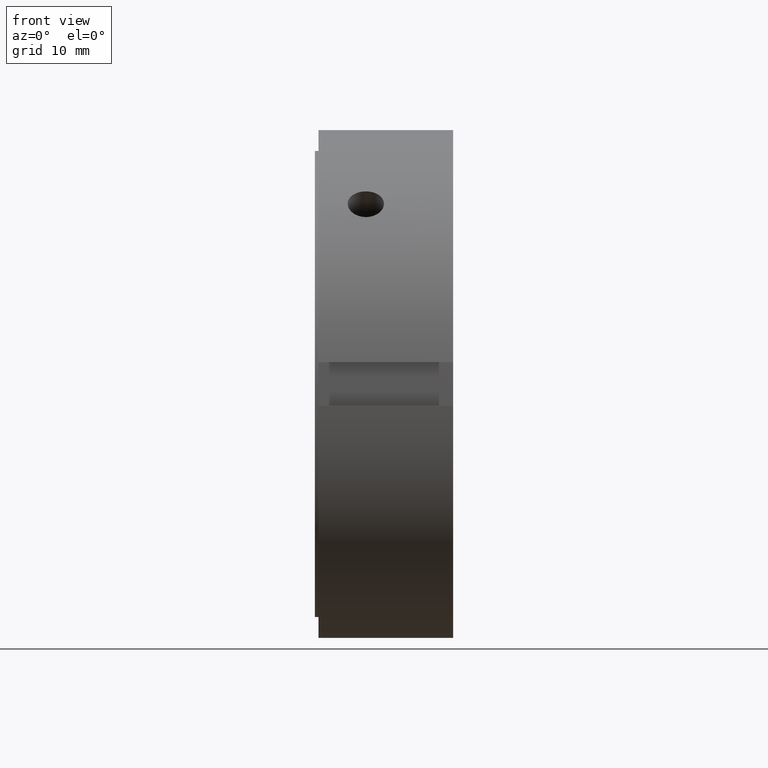
[diagram: clean part render]
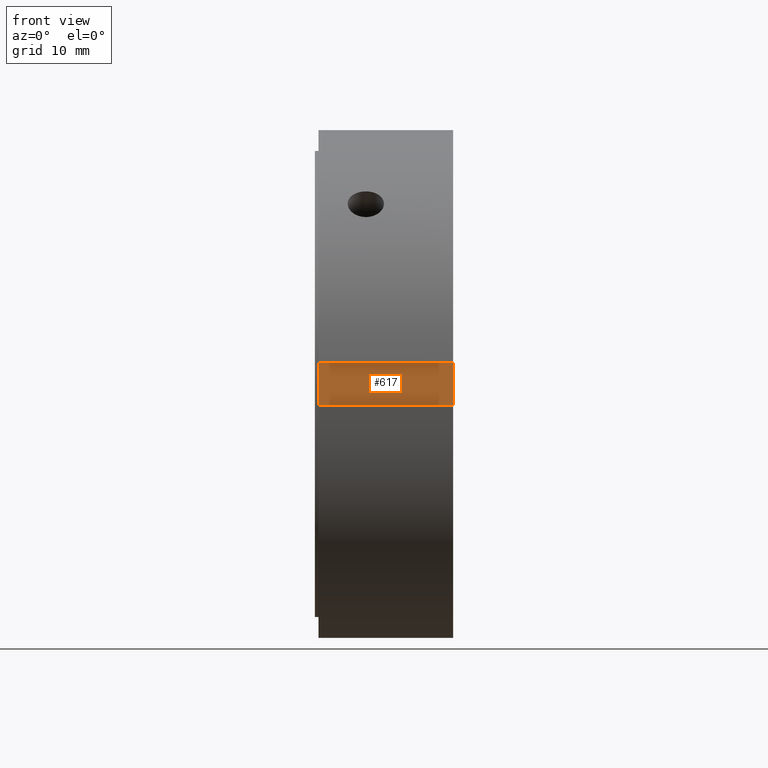
[diagram: same view with one face highlighted and labeled with its STEP entity id]
A machine part, front view. The second image highlights one B-rep face of the part: STEP entity #617.
In plain terms, the highlighted planar face has unit normal (0, 1, 0).
Its self-contained STEP definition (entity closure, byte-faithful):
#521=CARTESIAN_POINT('',(0.499999999999994,-32.5,3.000000000000003));
#522=VERTEX_POINT('',#521);
#531=CARTESIAN_POINT('',(18.999999999999989,-32.5,3.000000000000003));
#532=VERTEX_POINT('',#531);
#533=CARTESIAN_POINT('',(18.999999999999989,-32.5,3.000000000000003));
#534=DIRECTION('',(-1.0,0.0,0.0));
#535=VECTOR('',#534,18.499999999999996);
#536=LINE('',#533,#535);
#537=EDGE_CURVE('',#532,#522,#536,.T.);
#563=CARTESIAN_POINT('',(0.499999999999994,-32.5,-2.999999999999994));
#564=VERTEX_POINT('',#563);
#579=CARTESIAN_POINT('',(18.999999999999989,-32.5,-2.999999999999994));
#580=VERTEX_POINT('',#579);
#587=CARTESIAN_POINT('',(18.999999999999989,-32.5,-2.999999999999994));
#588=DIRECTION('',(-1.0,0.0,0.0));
#589=VECTOR('',#588,18.499999999999996);
#590=LINE('',#587,#589);
#591=EDGE_CURVE('',#580,#564,#590,.T.);
#596=CARTESIAN_POINT('',(18.999999999999989,-32.5,-2.999999999999994));
#597=DIRECTION('',(0.0,1.0,0.0));
#598=DIRECTION('',(0.0,0.0,1.0));
#599=AXIS2_PLACEMENT_3D('',#596,#597,#598);
#600=PLANE('',#599);
#601=CARTESIAN_POINT('',(0.499999999999994,-32.5,-2.999999999999994));
#602=DIRECTION('',(0.0,0.0,1.0));
#603=VECTOR('',#602,5.999999999999996);
#604=LINE('',#601,#603);
#605=EDGE_CURVE('',#564,#522,#604,.T.);
#606=ORIENTED_EDGE('',*,*,#605,.F.);
#607=ORIENTED_EDGE('',*,*,#591,.F.);
#608=CARTESIAN_POINT('',(18.999999999999989,-32.5,3.000000000000003));
#609=DIRECTION('',(0.0,0.0,-1.0));
#610=VECTOR('',#609,5.999999999999996);
#611=LINE('',#608,#610);
#612=EDGE_CURVE('',#532,#580,#611,.T.);
#613=ORIENTED_EDGE('',*,*,#612,.F.);
#614=ORIENTED_EDGE('',*,*,#537,.T.);
#615=EDGE_LOOP('',(#606,#607,#613,#614));
#616=FACE_OUTER_BOUND('',#615,.T.);
#617=ADVANCED_FACE('',(#616),#600,.F.);